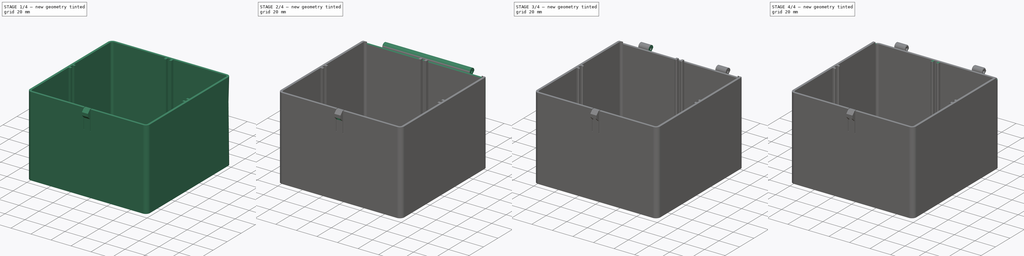
[diagram: build sequence overview — one tinted view per stage of 4, left to right]
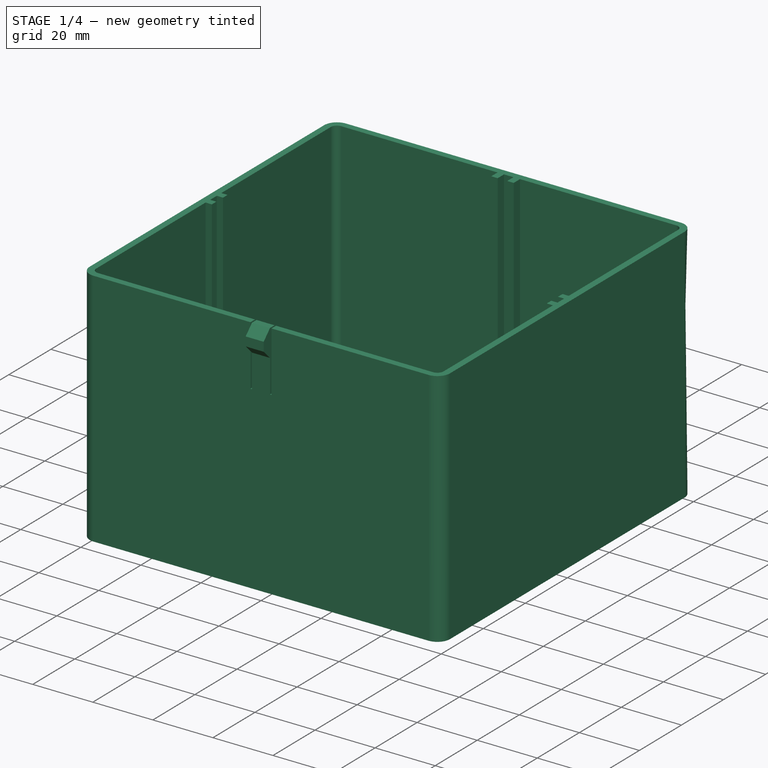
[diagram: stage 1 of 4 — iso view after this stage's code; geometry added in this stage tinted green]
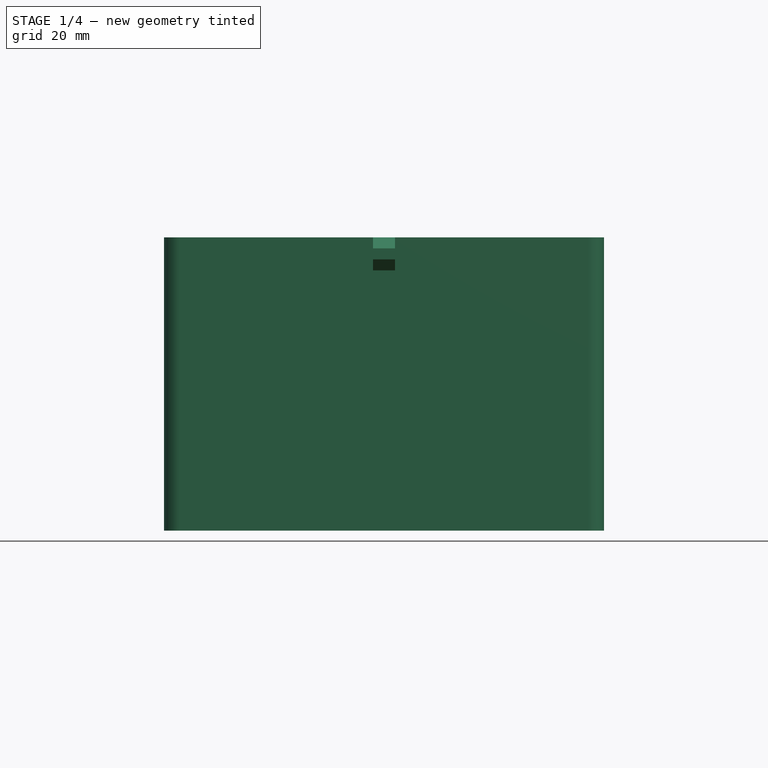
[diagram: stage 1 of 4 — front view after this stage's code; geometry added in this stage tinted green]
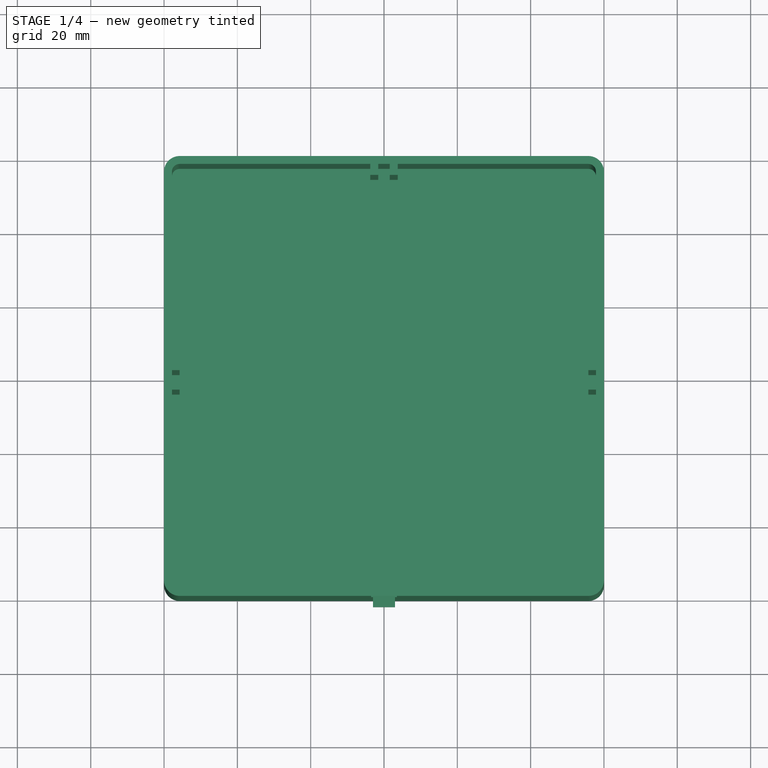
[diagram: stage 1 of 4 — top view after this stage's code; geometry added in this stage tinted green]
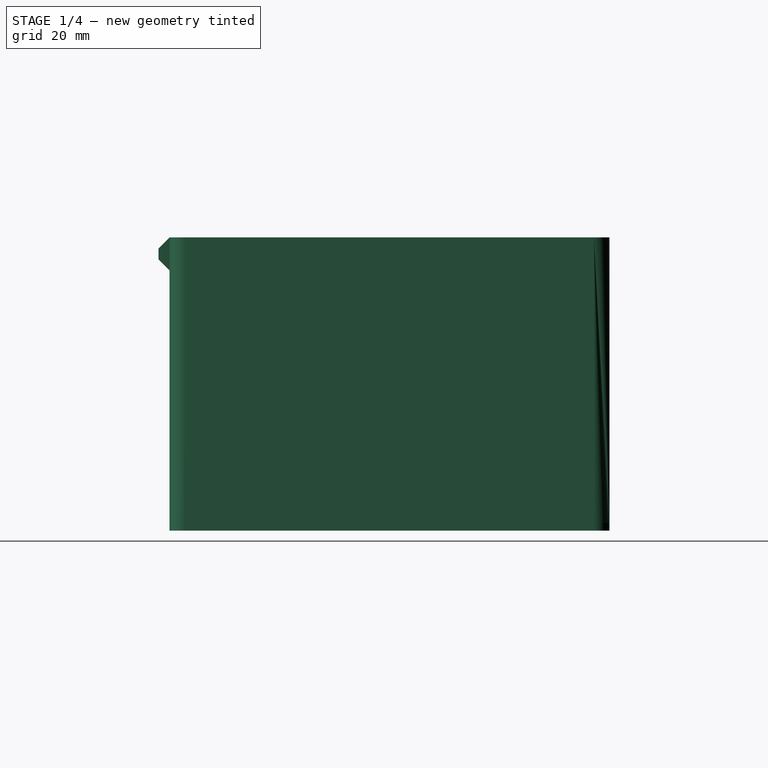
[diagram: stage 1 of 4 — right view after this stage's code; geometry added in this stage tinted green]
FCSTD DOCUMENT  (FreeCAD 0.20R24789 (Git))
Label: BoxBase
License: All rights reserved
LicenseURL: http://en.wikipedia.org/wiki/All_rights_reserved
objects: Sketcher::SketchObject×12, PartDesign::Pad×5, PartDesign::Pocket×5, PartDesign::Fillet×4, Spreadsheet::Sheet×1, PartDesign::Body×1
note: 41 computed .brp shape members not serialized (recipe doc carries the construction recipe); baked Part::Feature solids carry a one-line shape summary decoded from their .brp

FEATURE [Spreadsheet::Sheet] Spreadsheet  label="Param"
  cells = A2=HingeTolerance ; B2(HingeTolerance)==0.5mm; A3=LIne Width; B3(LineWidth)==0.72mm; A4=WallWidth ; B4(WallWidth)==3 * LineWidth; A5=Width; B5(Width)==120mm; A6=Length; B6(Length)==120mm; A7=Height; B7(Height)==80mm; A8=HingeWidth; B8(HingeWidth)==6mm; A9=HingeLength; B9(HingeLength)==10mm; A10=LidHingeLength ; B10(LidHingeLength)==7mm; A11=HIngeOffset; B11(HingeOffset)==10mm + LidHingeLength + HingeTolerance
FEATURE [Sketcher::SketchObject] Sketch  label="masterXY"
  FullyConstrained = true
  MapMode = 5
  Support = -> [XY_Plane]
  expr: Constraints[10] = <<Param>>.Width
  expr: Constraints[110] = <<Param>>.HingeTolerance
  expr: Constraints[88] = <<Param>>.HingeWidth
  expr: Constraints[89] = <<Param>>.HingeOffset
  expr: Constraints[109] = <<Param>>.HingeTolerance
  expr: Constraints[140] = <<Param>>.WallWidth
  expr: Constraints[21] = <<Param>>.WallWidth
  expr: Constraints[142] = <<Param>>.WallWidth + <<Param>>.HingeTolerance * 2
  expr: Constraints[20] = <<Param>>.WallWidth
  expr: Constraints[87] = <<Param>>.HingeLength
  expr: Constraints[9] = <<Param>>.Length
  expr: Constraints[141] = <<Param>>.WallWidth
  expr: Constraints[179] = <<Param>>.WallWidth
  expr: Constraints[180] = <<Param>>.WallWidth + <<Param>>.HingeTolerance * 2
  sketch-geometry (57):
    g0: LineSegment StartX=-60 StartY=60 StartZ=0 EndX=60 EndY=60 EndZ=0
    g1: LineSegment StartX=60 StartY=60 StartZ=0 EndX=60 EndY=-60 EndZ=0
    g2: LineSegment StartX=60 StartY=-60 StartZ=0 EndX=-60 EndY=-60 EndZ=0
    g3: LineSegment StartX=-60 StartY=-60 StartZ=0 EndX=-60 EndY=60 EndZ=0
    g4: LineSegment StartX=-57.84 StartY=57.84 StartZ=0 EndX=57.84 EndY=57.84 EndZ=0
    g5: LineSegment StartX=57.84 StartY=57.84 StartZ=0 EndX=57.84 EndY=-57.84 EndZ=0
    g6: LineSegment StartX=57.84 StartY=-57.84 StartZ=0 EndX=-57.84 EndY=-57.84 EndZ=0
    g7: LineSegment StartX=-57.84 StartY=-57.84 StartZ=0 EndX=-57.84 EndY=57.84 EndZ=0
    g8: LineSegment StartX=-55.7574 StartY=55.7574 StartZ=0 EndX=55.7574 EndY=55.7574 EndZ=0
    g9: LineSegment StartX=55.7574 StartY=55.7574 StartZ=0 EndX=55.7574 EndY=-55.7574 EndZ=0
    g10: LineSegment StartX=55.7574 StartY=-55.7574 StartZ=0 EndX=-55.7574 EndY=-55.7574 EndZ=0
    g11: LineSegment StartX=-55.7574 StartY=-55.7574 StartZ=0 EndX=-55.7574 EndY=55.7574 EndZ=0
    g12: LineSegment StartX=-60 StartY=60 StartZ=0 EndX=60 EndY=-60 EndZ=0
    g13: ArcOfCircle CenterX=-55.7574 CenterY=55.7574 CenterZ=0 NormalX=0 NormalY=0 NormalZ=1 AngleXU=0 Radius=4.24264 StartAngle=1.5708 EndAngle=3.14159
    g14: ArcOfCircle CenterX=-55.7574 CenterY=55.7574 CenterZ=0 NormalX=0 NormalY=0 NormalZ=1 AngleXU=0 Radius=2.08264 StartAngle=1.5708 EndAngle=3.14159
    g15: ArcOfCircle CenterX=-55.7574 CenterY=-55.7574 CenterZ=0 NormalX=0 NormalY=0 NormalZ=1 AngleXU=0 Radius=2.08264 StartAngle=3.14159 EndAngle=4.71239
    g16: ArcOfCircle CenterX=-55.7574 CenterY=-55.7574 CenterZ=0 NormalX=0 NormalY=0 NormalZ=1 AngleXU=0 Radius=4.24264 StartAngle=3.14159 EndAngle=4.71239
    g17: ArcOfCircle CenterX=55.7574 CenterY=-55.7574 CenterZ=0 NormalX=0 NormalY=0 NormalZ=1 AngleXU=0 Radius=2.08264 StartAngle=4.71239 EndAngle=6.28319
    g18: ArcOfCircle CenterX=55.7574 CenterY=-55.7574 CenterZ=0 NormalX=0 NormalY=0 NormalZ=1 AngleXU=0 Radius=4.24264 StartAngle=4.71239 EndAngle=6.28319
    g19: ArcOfCircle CenterX=55.7574 CenterY=55.7574 CenterZ=0 NormalX=0 NormalY=0 NormalZ=1 AngleXU=0 Radius=2.08264 StartAngle=5.91478e-08 EndAngle=1.5708
    g20: ArcOfCircle CenterX=55.7574 CenterY=55.7574 CenterZ=0 NormalX=0 NormalY=0 NormalZ=1 AngleXU=0 Radius=4.24264 StartAngle=6.28319 EndAngle=7.85398
    g21: LineSegment StartX=-42.5 StartY=60 StartZ=0 EndX=-32.5 EndY=60 EndZ=0
    g22: LineSegment StartX=-32.5 StartY=60 StartZ=0 EndX=-32.5 EndY=66 EndZ=0
    g23: LineSegment StartX=-32.5 StartY=66 StartZ=0 EndX=-42.5 EndY=66 EndZ=0
    g24: LineSegment StartX=-42.5 StartY=66 StartZ=0 EndX=-42.5 EndY=60 EndZ=0
    g25: LineSegment StartX=42.5 StartY=60 StartZ=0 EndX=32.5 EndY=60 EndZ=0
    g26: LineSegment StartX=32.5 StartY=60 StartZ=0 EndX=32.5 EndY=66 EndZ=0
    g27: LineSegment StartX=32.5 StartY=66 StartZ=0 EndX=42.5 EndY=66 EndZ=0
    g28: LineSegment StartX=42.5 StartY=66 StartZ=0 EndX=42.5 EndY=60 EndZ=0
    g29: LineSegment StartX=-3 StartY=-57.84 StartZ=0 EndX=3 EndY=-57.84 EndZ=0
    g30: LineSegment StartX=3 StartY=-57.84 StartZ=0 EndX=3 EndY=-62 EndZ=0
    g31: LineSegment StartX=3 StartY=-62 StartZ=0 EndX=-3 EndY=-62 EndZ=0
    g32: LineSegment StartX=-3 StartY=-62 StartZ=0 EndX=-3 EndY=-57.84 EndZ=0
    g33: GeomPoint X=3 Y=-60 Z=0
    g34: LineSegment StartX=3.5 StartY=-57.84 StartZ=0 EndX=3.5 EndY=-60 EndZ=0
    g35: LineSegment StartX=-3.5 StartY=-57.84 StartZ=0 EndX=-3.5 EndY=-60 EndZ=0
    g36: LineSegment StartX=-42.5 StartY=64 StartZ=0 EndX=-32.5 EndY=64 EndZ=0
    g37: LineSegment StartX=-42.5 StartY=62 StartZ=0 EndX=-32.5 EndY=62 EndZ=0
    g38: LineSegment StartX=-37.5 StartY=64 StartZ=0 EndX=-37.5 EndY=66 EndZ=0
    g39: LineSegment StartX=-37.5 StartY=64 StartZ=0 EndX=-37.5 EndY=62 EndZ=0
    g40: LineSegment StartX=-37.5 StartY=62 StartZ=0 EndX=-37.5 EndY=60 EndZ=0
    g41: LineSegment StartX=32.5 StartY=64 StartZ=0 EndX=42.5 EndY=64 EndZ=0
    g42: LineSegment StartX=32.5 StartY=62 StartZ=0 EndX=42.5 EndY=62 EndZ=0
    g43: LineSegment StartX=-1.58 StartY=57.84 StartZ=0 EndX=-1.58 EndY=-57.84 EndZ=0
    g44: LineSegment StartX=-3.74 StartY=57.84 StartZ=0 EndX=-3.74 EndY=-57.84 EndZ=0
    g45: LineSegment StartX=1.58 StartY=57.84 StartZ=0 EndX=1.58 EndY=-57.84 EndZ=0
    g46: LineSegment StartX=3.74 StartY=57.84 StartZ=0 EndX=3.74 EndY=-57.84 EndZ=0
    g47: LineSegment StartX=-3.74 StartY=54.84 StartZ=0 EndX=3.74 EndY=54.84 EndZ=0
    g48: LineSegment StartX=-3.74 StartY=-54.84 StartZ=0 EndX=3.74 EndY=-54.84 EndZ=0
    g49: LineSegment StartX=-57.84 StartY=1.58 StartZ=0 EndX=57.84 EndY=1.58 EndZ=0
    g50: LineSegment StartX=57.84 StartY=1.58 StartZ=0 EndX=57.84 EndY=3.74 EndZ=0
    g51: LineSegment StartX=57.84 StartY=3.74 StartZ=0 EndX=-57.84 EndY=3.74 EndZ=0
    g52: LineSegment StartX=-57.84 StartY=3.74 StartZ=0 EndX=-57.84 EndY=1.58 EndZ=0
    g53: LineSegment StartX=57.84 StartY=-3.74 StartZ=0 EndX=-57.84 EndY=-3.74 EndZ=0
    g54: LineSegment StartX=-57.84 StartY=-3.74 StartZ=0 EndX=-57.84 EndY=-1.58 EndZ=0
    g55: LineSegment StartX=-57.84 StartY=-1.58 StartZ=0 EndX=57.84 EndY=-1.58 EndZ=0
    g56: LineSegment StartX=57.84 StartY=-1.58 StartZ=0 EndX=57.84 EndY=-3.74 EndZ=0
  constraints (181):
    c: Coincident(g0,g1)
    c: Coincident(g1,g2)
    c: Coincident(g2,g3)
    c: Coincident(g3,g0)
    c: Horizontal(g0)
    c: Horizontal(g2)
    c: Vertical(g1)
    c: Vertical(g3)
    c: Symmetric(g0,g1,g-1)
    c: DistanceY(g1,g1) = 120
    c: DistanceX(g0,g0) = 120
    c: Coincident(g4,g5)
    c: Coincident(g5,g6)
    c: Coincident(g6,g7)
    c: Coincident(g7,g4)
    c: Horizontal(g4)
    c: Horizontal(g6)
    c: Vertical(g5)
    c: Vertical(g7)
    c: Symmetric(g5,g4,g-1)
    c: DistanceX(g4,g0) = 2.16
    c: DistanceY(g4,g0) = 2.16
    c: Coincident(g8,g9)
    c: Coincident(g9,g10)
    c: Coincident(g10,g11)
    c: Coincident(g11,g8)
    c: Horizontal(g8)
    c: Horizontal(g10)
    c: Vertical(g9)
    c: Vertical(g11)
    c: Symmetric(g8,g9,g-1)
    c: Coincident(g12,g0)
    c: Coincident(g12,g1)
    c: PointOnObject(g9,g12)
    c: Distance(g0,g8) = 6
    c: Coincident(g13,g8)
    c: PointOnObject(g13,g3)
    c: PointOnObject(g13,g0)
    c: Tangent(g13,g0,g13) = 1.5708
    c: Coincident(g14,g8)
    c: PointOnObject(g14,g7)
    c: PointOnObject(g14,g4)
    c: Tangent(g14,g4)
    c: Coincident(g15,g10)
    c: PointOnObject(g15,g7)
    c: PointOnObject(g15,g6)
    c: Coincident(g16,g10)
    c: PointOnObject(g16,g3)
    c: PointOnObject(g16,g2)
    c: Tangent(g15,g7)
    c: Tangent(g16,g3)
    c: Coincident(g17,g9)
    c: PointOnObject(g17,g5)
    c: PointOnObject(g17,g6)
    c: Coincident(g18,g9)
    c: PointOnObject(g18,g1)
    c: PointOnObject(g18,g2)
    c: Tangent(g1,g18)
    c: Tangent(g17,g5)
    c: Coincident(g19,g8)
    c: PointOnObject(g19,g4)
    c: PointOnObject(g19,g5)
    c: Coincident(g20,g8)
    c: PointOnObject(g20,g0)
    c: PointOnObject(g20,g1)
    c: Tangent(g4,g19)
    c: Tangent(g0,g20)
    c: Coincident(g21,g22)
    c: Coincident(g22,g23)
    c: Coincident(g23,g24)
    c: Coincident(g24,g21)
    c: Horizontal(g21)
    c: Horizontal(g23)
    c: Vertical(g22)
    c: Vertical(g24)
    c: PointOnObject(g21,g0)
    c: Coincident(g25,g26)
    c: Coincident(g26,g27)
    c: Coincident(g27,g28)
    c: Coincident(g28,g25)
    c: Horizontal(g25)
    c: Horizontal(g27)
    c: Vertical(g26)
    c: Vertical(g28)
    c: Symmetric(g25,g21,g-2)
    c: Equal(g23,g27)
    c: Horizontal(g22,g26)
    c: DistanceX(g27,g27) = 10
    c: DistanceY(g28,g28) = 6
    c: DistanceX(g25,g0) = 17.5
    c: Coincident(g29,g30)
    c: Coincident(g30,g31)
    c: Coincident(g31,g32)
    c: Coincident(g32,g29)
    c: Horizontal(g29)
    c: Vertical(g30)
    c: Vertical(g32)
    c: PointOnObject(g29,g6)
    c: Symmetric(g30,g31,g-2)
    c: PointOnObject(g33,g30)
    c: PointOnObject(g33,g2)
    c: DistanceY(g30,g33) = 2
    c: DistanceX(g31,g31) = 6
    c: PointOnObject(g34,g6)
    c: PointOnObject(g34,g2)
    c: Vertical(g34)
    c: PointOnObject(g35,g6)
    c: PointOnObject(g35,g2)
    c: Vertical(g35)
    c: DistanceX(g35,g29) = 0.5
    c: DistanceX(g29,g34) = 0.5
    c: PointOnObject(g36,g24)
    c: PointOnObject(g36,g22)
    c: Horizontal(g36)
    c: PointOnObject(g37,g24)
    c: PointOnObject(g37,g22)
    c: Horizontal(g37)
    c: PointOnObject(g38,g36)
    c: PointOnObject(g38,g23)
    c: PointOnObject(g39,g37)
    c: Vertical(g39)
    c: PointOnObject(g40,g0)
    c: Vertical(g40)
    c: Coincident(g40,g39)
    c: Coincident(g39,g38)
    c: Symmetric(g22,g23,g38)
    c: Equal(g38,g39)
    c: Equal(g40,g39)
    c: PointOnObject(g41,g26)
    c: PointOnObject(g41,g28)
    c: PointOnObject(g42,g26)
    c: PointOnObject(g42,g28)
    c: Horizontal(g42)
    c: Horizontal(g41)
    c: Horizontal(g41,g36)
    c: Horizontal(g37,g42)
    c: Vertical(g43)
    c: Vertical(g44)
    c: Vertical(g45)
    c: Vertical(g46)
    c: DistanceX(g44,g43) = 2.16
    c: DistanceX(g45,g46) = 2.16
    c: DistanceX(g43,g45) = 3.16
    c: Symmetric(g45,g43,g-2)
    c: PointOnObject(g47,g44)
    c: PointOnObject(g47,g46)
    c: Horizontal(g47)
    c: PointOnObject(g48,g44)
    c: PointOnObject(g48,g46)
    c: Horizontal(g48)
    c: DistanceY(g46,g48) = 3
    c: PointOnObject(g44,g4)
    c: PointOnObject(g43,g4)
    c: PointOnObject(g46,g4)
    c: PointOnObject(g44,g6)
    c: PointOnObject(g43,g6)
    c: PointOnObject(g45,g6)
    c: PointOnObject(g46,g6)
    c: DistanceY(g47,g46) = 3
    c: Coincident(g49,g50)
    c: Coincident(g50,g51)
    c: Coincident(g51,g52)
    c: Coincident(g52,g49)
    c: Horizontal(g49)
    c: Horizontal(g51)
    c: Vertical(g50)
    c: Vertical(g52)
    c: PointOnObject(g49,g7)
    c: PointOnObject(g50,g5)
    c: Coincident(g53,g54)
    c: Coincident(g54,g55)
    c: Coincident(g55,g56)
    c: Coincident(g56,g53)
    c: Horizontal(g53)
    c: Horizontal(g55)
    c: Vertical(g54)
    c: PointOnObject(g54,g7)
    c: Symmetric(g50,g53,g-1)
    c: Symmetric(g55,g49,g-1)
    c: DistanceY(g49,g50) = 2.16
    c: DistanceY(g55,g49) = 3.16
FEATURE [Sketcher::SketchObject] Sketch001  label="MasterZY"
  ExternalGeometry = -> [Sketch]
  FullyConstrained = true
  MapMode = 5
  Placement = pos=(0,0,0) rot=(0.57735,0.57735,0.57735;2.0944rad)
  Support = -> [YZ_Plane]
  expr: Constraints[8] = <<Param>>.Height
  expr: Constraints[27] = <<Param>>.HingeWidth + <<Param>>.WallWidth + <<Param>>.HingeTolerance
  expr: Constraints[26] = <<Param>>.HingeWidth / 6
  expr: Constraints[31] = <<Param>>.WallWidth
  expr: Constraints[28] = <<Param>>.WallWidth
  expr: Constraints[34] = <<Param>>.WallWidth
  expr: Constraints[47] = <<Param>>.WallWidth
  sketch-geometry (16):
    g0: LineSegment StartX=-60 StartY=-3.33e-14 StartZ=0 EndX=60 EndY=0 EndZ=0
    g1: LineSegment StartX=60 StartY=0 StartZ=0 EndX=60 EndY=80 EndZ=0
    g2: LineSegment StartX=60 StartY=80 StartZ=0 EndX=-60 EndY=80 EndZ=0
    g3: LineSegment StartX=-60 StartY=80 StartZ=0 EndX=-60 EndY=-2.84e-14 EndZ=0
    g4: LineSegment StartX=-57.84 StartY=80 StartZ=0 EndX=-57.84 EndY=-2.84e-14 EndZ=0
    g5: LineSegment StartX=57.84 StartY=80 StartZ=0 EndX=57.84 EndY=0 EndZ=0
    g6: LineSegment StartX=57.84 StartY=77.84 StartZ=0 EndX=66.5 EndY=77.84 EndZ=0
    g7: LineSegment StartX=66.5 StartY=77.84 StartZ=0 EndX=60 EndY=71.34 EndZ=0
    g8: ArcOfCircle CenterX=63.25 CenterY=77.84 CenterZ=0 NormalX=0 NormalY=0 NormalZ=1 AngleXU=0 Radius=3.25 StartAngle=-1.15e-14 EndAngle=3.14159
    g9: Circle CenterX=63.25 CenterY=77.84 CenterZ=0 NormalX=0 NormalY=0 NormalZ=1 AngleXU=0 Radius=1
    g10: LineSegment StartX=62.25 StartY=77.84 StartZ=0 EndX=64.25 EndY=77.84 EndZ=0
    g11: LineSegment StartX=-60 StartY=80 StartZ=0 EndX=-63 EndY=77 EndZ=0
    g12: LineSegment StartX=-60 StartY=74 StartZ=0 EndX=-63 EndY=74 EndZ=0
    g13: LineSegment StartX=-63 StartY=77 StartZ=0 EndX=-63 EndY=74 EndZ=0
    g14: LineSegment StartX=-60 StartY=2.16 StartZ=0 EndX=60 EndY=2.16 EndZ=0
    g15: LineSegment StartX=-63 StartY=74 StartZ=0 EndX=-60 EndY=71 EndZ=0
  constraints (51):
    c: Coincident(g0,g1)
    c: Coincident(g1,g2)
    c: Coincident(g2,g3)
    c: Coincident(g3,g0)
    c: Horizontal(g2)
    c: Vertical(g1)
    c: Vertical(g3)
    c: Coincident(g0,g-3)
    c: DistanceY(g3,g3) = 80
    c: PointOnObject(g4,g2)
    c: PointOnObject(g4,g0)
    c: Vertical(g4)
    c: PointOnObject(g5,g2)
    c: PointOnObject(g5,g0)
    c: Vertical(g5)
    c: PointOnObject(g6,g5)
    c: Horizontal(g6)
    c: PointOnObject(g8,g6)
    c: PointOnObject(g8,g1)
    c: Coincident(g8,g6)
    c: Coincident(g7,g6)
    c: Coincident(g9,g8)
    c: PointOnObject(g10,g9)
    c: PointOnObject(g10,g9)
    c: PointOnObject(g10,g6)
    c: PointOnObject(g10,g6)
    c: Radius(g9) = 1
    c: DistanceX(g6,g6) = 8.66
    c: DistanceX(g5,g1) = 2.16
    c: Angle(g1,g7) = 2.35619
    c: PointOnObject(g7,g1)
    c: DistanceY(g6,g1) = 2.16
    c: PointOnObject(g8,g6)
    c: Coincident(g0,g-3)
    c: DistanceX(g2,g4) = 2.16
    c: PointOnObject(g12,g3)
    c: Horizontal(g12)
    c: Coincident(g13,g11)
    c: Coincident(g13,g12)
    c: Vertical(g13)
    c: Angle(g11,g3) = 0.785398
    c: DistanceX(g12,g12) = 3
    c: DistanceY(g12,g11) = 6
    c: Coincident(g11,g2)
    c: PointOnObject(g14,g3)
    c: PointOnObject(g14,g1)
    c: Horizontal(g14)
    c: DistanceY(g0,g14) = 2.16
    c: PointOnObject(g15,g3)
    c: Angle(g15,g3) = 2.35619
    c: Coincident(g15,g12)
FEATURE [Sketcher::SketchObject] Sketch002
  ExternalGeometry = -> [Sketch]
  FullyConstrained = true
  MapMode = 5
  Support = -> [XY_Plane]
  sketch-geometry (8):
    g0: ArcOfCircle CenterX=-55.7574 CenterY=55.7574 CenterZ=0 NormalX=0 NormalY=0 NormalZ=1 AngleXU=0 Radius=4.24264 StartAngle=1.57085 EndAngle=3.14159
    g1: ArcOfCircle CenterX=-55.7574 CenterY=-55.7574 CenterZ=0 NormalX=0 NormalY=0 NormalZ=1 AngleXU=0 Radius=4.24264 StartAngle=3.14159 EndAngle=4.71239
    g2: ArcOfCircle CenterX=55.7574 CenterY=-55.7574 CenterZ=0 NormalX=0 NormalY=0 NormalZ=1 AngleXU=0 Radius=4.24264 StartAngle=4.71239 EndAngle=6.28319
    g3: ArcOfCircle CenterX=55.7574 CenterY=55.7574 CenterZ=0 NormalX=0 NormalY=0 NormalZ=1 AngleXU=0 Radius=4.24264 StartAngle=8.48127e-08 EndAngle=1.5708
    g4: LineSegment StartX=-60 StartY=55.7574 StartZ=0 EndX=-60 EndY=-55.7574 EndZ=0
    g5: LineSegment StartX=60 StartY=55.7574 StartZ=0 EndX=60 EndY=-55.7574 EndZ=0
    g6: LineSegment StartX=55.7574 StartY=-60 StartZ=0 EndX=-55.7574 EndY=-60 EndZ=0
    g7: LineSegment StartX=-55.7576 StartY=60 StartZ=0 EndX=55.7574 EndY=60 EndZ=0
  constraints (19):
    c: Coincident(g0,g-6)
    c: Coincident(g1,g-12)
    c: Coincident(g1,g-12)
    c: Coincident(g1,g-12)
    c: Coincident(g2,g-14)
    c: Coincident(g2,g-13)
    c: Coincident(g2,g-13)
    c: Coincident(g3,g-18)
    c: Coincident(g3,g-17)
    c: Coincident(g3,g-17)
    c: Coincident(g4,g0)
    c: Coincident(g4,g1)
    c: Coincident(g5,g3)
    c: Coincident(g5,g2)
    c: Coincident(g6,g2)
    c: Coincident(g6,g1)
    c: Coincident(g7,g0)
    c: Coincident(g7,g3)
    c: Coincident(g0,g-6)
FEATURE [PartDesign::Pad] Pad
  Direction = (0,0,1)
  Length = 2.16
  Length2 = 100
  Profile = -> Sketch002
  Type = 0
  expr: Length = <<Param>>.WallWidth
FEATURE [Sketcher::SketchObject] Sketch003
  ExternalGeometry = -> [Sketch]
  FullyConstrained = true
  MapMode = 5
  Placement = pos=(0,0,2.16) rot=(0,0,1;0rad)
  Support = -> [Pad]
  sketch-geometry (48):
    g0: ArcOfCircle CenterX=-55.7574 CenterY=55.7574 CenterZ=0 NormalX=0 NormalY=0 NormalZ=1 AngleXU=0 Radius=2.08264 StartAngle=1.5708 EndAngle=3.14159
    g1: ArcOfCircle CenterX=-55.7574 CenterY=55.7574 CenterZ=0 NormalX=0 NormalY=0 NormalZ=1 AngleXU=0 Radius=4.24264 StartAngle=1.5708 EndAngle=3.14159
    g2: ArcOfCircle CenterX=55.7574 CenterY=55.7574 CenterZ=0 NormalX=0 NormalY=0 NormalZ=1 AngleXU=0 Radius=2.08264 StartAngle=5.91478e-08 EndAngle=1.5708
    g3: ArcOfCircle CenterX=55.7574 CenterY=55.7574 CenterZ=0 NormalX=0 NormalY=0 NormalZ=1 AngleXU=0 Radius=4.24264 StartAngle=6.28319 EndAngle=7.85398
    g4: ArcOfCircle CenterX=55.7574 CenterY=-55.7574 CenterZ=0 NormalX=0 NormalY=0 NormalZ=1 AngleXU=0 Radius=2.08264 StartAngle=4.71239 EndAngle=6.28319
    g5: ArcOfCircle CenterX=55.7574 CenterY=-55.7574 CenterZ=0 NormalX=0 NormalY=0 NormalZ=1 AngleXU=0 Radius=4.24264 StartAngle=4.71239 EndAngle=6.28319
    g6: ArcOfCircle CenterX=-55.7574 CenterY=-55.7574 CenterZ=0 NormalX=0 NormalY=0 NormalZ=1 AngleXU=0 Radius=2.08264 StartAngle=3.14159 EndAngle=4.71239
    g7: ArcOfCircle CenterX=-55.7574 CenterY=-55.7574 CenterZ=0 NormalX=0 NormalY=0 NormalZ=1 AngleXU=0 Radius=4.24264 StartAngle=3.14159 EndAngle=4.71239
    g8: LineSegment StartX=-55.7574 StartY=-60 StartZ=0 EndX=55.7574 EndY=-60 EndZ=0
    g9: LineSegment StartX=55.7574 StartY=-57.84 StartZ=0 EndX=3.74 EndY=-57.84 EndZ=0
    g10: LineSegment StartX=-3.74 StartY=-57.84 StartZ=0 EndX=-55.7574 EndY=-57.84 EndZ=0
    g11: LineSegment StartX=-60 StartY=55.7574 StartZ=0 EndX=-60 EndY=-55.7574 EndZ=0
    g12: LineSegment StartX=60 StartY=-55.7574 StartZ=0 EndX=60 EndY=55.7574 EndZ=0
    g13: LineSegment StartX=-55.7574 StartY=60 StartZ=0 EndX=55.7574 EndY=60 EndZ=0
    g14: LineSegment StartX=3.74 StartY=57.84 StartZ=0 EndX=55.7574 EndY=57.84 EndZ=0
    g15: LineSegment StartX=-55.7574 StartY=57.84 StartZ=0 EndX=-3.74 EndY=57.84 EndZ=0
    g16: LineSegment StartX=-3.74 StartY=57.84 StartZ=0 EndX=-3.74 EndY=54.84 EndZ=0
    g17: LineSegment StartX=3.74 StartY=54.84 StartZ=0 EndX=3.74 EndY=57.84 EndZ=0
    g18: LineSegment StartX=-1.58 StartY=57.84 StartZ=0 EndX=1.58 EndY=57.84 EndZ=0
    g19: LineSegment StartX=1.58 StartY=57.84 StartZ=0 EndX=1.58 EndY=54.84 EndZ=0
    g20: LineSegment StartX=-1.58 StartY=57.84 StartZ=0 EndX=-1.58 EndY=54.84 EndZ=0
    g21: LineSegment StartX=-3.74 StartY=54.84 StartZ=0 EndX=-1.58 EndY=54.84 EndZ=0
    g22: LineSegment StartX=1.58 StartY=54.84 StartZ=0 EndX=3.74 EndY=54.84 EndZ=0
    g23: LineSegment StartX=1.58 StartY=-57.84 StartZ=0 EndX=-1.58 EndY=-57.84 EndZ=0
    g24: LineSegment StartX=-3.74 StartY=-54.84 StartZ=0 EndX=-3.74 EndY=-57.84 EndZ=0
    g25: LineSegment StartX=3.74 StartY=-54.84 StartZ=0 EndX=3.74 EndY=-57.84 EndZ=0
    g26: LineSegment StartX=1.58 StartY=-57.84 StartZ=0 EndX=1.58 EndY=-54.84 EndZ=0
    g27: LineSegment StartX=1.58 StartY=-54.84 StartZ=0 EndX=3.74 EndY=-54.84 EndZ=0
    g28: LineSegment StartX=-1.58 StartY=-57.84 StartZ=0 EndX=-1.58 EndY=-54.84 EndZ=0
    g29: LineSegment StartX=-1.58 StartY=-54.84 StartZ=0 EndX=-3.74 EndY=-54.84 EndZ=0
    g30: LineSegment StartX=-57.84 StartY=55.7574 StartZ=0 EndX=-57.84 EndY=3.74 EndZ=0
    g31: LineSegment StartX=-57.84 StartY=1.58 StartZ=0 EndX=-57.84 EndY=-1.58 EndZ=0
    g32: LineSegment StartX=-57.84 StartY=-3.74 StartZ=0 EndX=-57.84 EndY=-55.7574 EndZ=0
    g33: LineSegment StartX=57.84 StartY=-55.7574 StartZ=0 EndX=57.84 EndY=-3.74 EndZ=0
    g34: LineSegment StartX=57.84 StartY=3.74 StartZ=0 EndX=57.84 EndY=55.7574 EndZ=0
    g35: LineSegment StartX=57.84 StartY=-1.58 StartZ=0 EndX=57.84 EndY=1.58 EndZ=0
    g36: LineSegment StartX=57.84 StartY=3.74 StartZ=0 EndX=55.7574 EndY=3.74 EndZ=0
    g37: LineSegment StartX=57.84 StartY=1.58 StartZ=0 EndX=55.7574 EndY=1.58 EndZ=0
    g38: LineSegment StartX=55.7574 StartY=1.58 StartZ=0 EndX=55.7574 EndY=3.74 EndZ=0
    g39: LineSegment StartX=57.84 StartY=-1.58 StartZ=0 EndX=55.7574 EndY=-1.58 EndZ=0
    g40: LineSegment StartX=57.84 StartY=-3.74 StartZ=0 EndX=55.7574 EndY=-3.74 EndZ=0
    g41: LineSegment StartX=55.7574 StartY=-3.74 StartZ=0 EndX=55.7574 EndY=-1.58 EndZ=0
    g42: LineSegment StartX=-57.84 StartY=3.74 StartZ=0 EndX=-55.7574 EndY=3.74 EndZ=0
    g43: LineSegment StartX=-57.84 StartY=1.58 StartZ=0 EndX=-55.7574 EndY=1.58 EndZ=0
    g44: LineSegment StartX=-55.7574 StartY=1.58 StartZ=0 EndX=-55.7574 EndY=3.74 EndZ=0
    g45: LineSegment StartX=-57.84 StartY=-1.58 StartZ=0 EndX=-55.7574 EndY=-1.58 EndZ=0
    g46: LineSegment StartX=-57.84 StartY=-3.74 StartZ=0 EndX=-55.7574 EndY=-3.74 EndZ=0
    g47: LineSegment StartX=-55.7574 StartY=-3.74 StartZ=0 EndX=-55.7574 EndY=-1.58 EndZ=0
  constraints (116):
    c: Coincident(g0,g-8)
    c: Coincident(g0,g-8)
    c: Coincident(g0,g-8)
    c: Coincident(g1,g0)
    c: Coincident(g1,g-7)
    c: Coincident(g1,g-7)
    c: Coincident(g2,g-6)
    c: Coincident(g2,g-5)
    c: Coincident(g2,g-5)
    c: Coincident(g3,g2)
    c: Coincident(g3,g-6)
    c: Coincident(g3,g-6)
    c: Coincident(g4,g-12)
    c: PointOnObject(g4,g-19)
    c: Coincident(g4,g-12)
    c: Coincident(g5,g4)
    c: Coincident(g5,g-11)
    c: Coincident(g5,g-11)
    c: Coincident(g6,g-10)
    c: Coincident(g6,g-9)
    c: Coincident(g6,g-9)
    c: Coincident(g7,g6)
    c: Coincident(g7,g-10)
    c: Coincident(g7,g-10)
    c: Coincident(g8,g7)
    c: Coincident(g8,g5)
    c: Coincident(g9,g4)
    c: Coincident(g9,g-16)
    c: Coincident(g10,g-13)
    c: Coincident(g10,g6)
    c: Coincident(g11,g1)
    c: Coincident(g11,g7)
    c: Coincident(g12,g5)
    c: Coincident(g12,g3)
    c: Coincident(g13,g1)
    c: Coincident(g13,g3)
    c: Coincident(g14,g-16)
    c: Coincident(g14,g2)
    c: Coincident(g15,g0)
    c: Coincident(g15,g-13)
    c: Coincident(g16,g15)
    c: Coincident(g16,g-20)
    c: Coincident(g17,g-20)
    c: Coincident(g17,g14)
    c: Coincident(g18,g-14)
    c: Coincident(g18,g-15)
    c: Coincident(g19,g18)
    c: PointOnObject(g19,g-15)
    c: Coincident(g20,g18)
    c: PointOnObject(g20,g-14)
    c: Coincident(g21,g16)
    c: Coincident(g21,g20)
    c: Horizontal(g21)
    c: Coincident(g22,g19)
    c: Coincident(g22,g17)
    c: Horizontal(g22)
    c: Coincident(g23,g-15)
    c: Coincident(g23,g-14)
    c: Coincident(g24,g-17)
    c: Coincident(g24,g10)
    c: Coincident(g25,g-17)
    c: Coincident(g25,g9)
    c: Coincident(g26,g23)
    c: PointOnObject(g26,g-15)
    c: Coincident(g27,g25)
    c: Horizontal(g27)
    c: Coincident(g28,g23)
    c: PointOnObject(g28,g-14)
    c: Coincident(g29,g24)
    c: Horizontal(g29)
    c: Coincident(g26,g27)
    c: Coincident(g28,g29)
    c: Coincident(g30,g0)
    c: Coincident(g30,g-21)
    c: Coincident(g31,g-22)
    c: Coincident(g31,g-23)
    c: Coincident(g32,g-24)
    c: Coincident(g32,g6)
    c: Coincident(g33,g4)
    c: Coincident(g33,g-24)
    c: Coincident(g34,g-21)
    c: Coincident(g34,g2)
    c: Coincident(g35,g-23)
    c: Coincident(g35,g-22)
    c: Coincident(g36,g34)
    c: PointOnObject(g36,g-26)
    c: Horizontal(g36)
    c: Coincident(g37,g35)
    c: PointOnObject(g37,g-26)
    c: Horizontal(g37)
    c: Coincident(g38,g37)
    c: Coincident(g38,g36)
    c: Coincident(g39,g35)
    c: PointOnObject(g39,g-26)
    c: Horizontal(g39)
    c: Coincident(g40,g33)
    c: PointOnObject(g40,g-26)
    c: Horizontal(g40)
    c: Coincident(g41,g40)
    c: Coincident(g41,g39)
    c: Coincident(g42,g30)
    c: PointOnObject(g42,g-25)
    c: Horizontal(g42)
    c: Coincident(g43,g31)
    c: PointOnObject(g43,g-25)
    c: Horizontal(g43)
    c: Coincident(g44,g43)
    c: Coincident(g44,g42)
    c: Coincident(g45,g31)
    c: PointOnObject(g45,g-25)
    c: Horizontal(g45)
    c: Coincident(g46,g32)
    c: PointOnObject(g46,g-25)
    c: Horizontal(g46)
    c: Coincident(g47,g46)
    c: Coincident(g47,g45)
FEATURE [PartDesign::Pad] Pad001
  BaseFeature = -> Pad
  Direction = (0,0,1)
  Length = 77.84
  Length2 = 100
  Profile = -> Sketch003
  Type = 0
  expr: Length = <<Param>>.Height - <<Param>>.WallWidth
FEATURE [Sketcher::SketchObject] Sketch004
  ExternalGeometry = -> [Sketch]
  FullyConstrained = true
  MapMode = 5
  Placement = pos=(0,0,80) rot=(0,0,1;0rad)
  Support = -> [Pad001]
  sketch-geometry (12):
    g0: LineSegment StartX=-3.74 StartY=-54.84 StartZ=0 EndX=-3.74 EndY=-57.84 EndZ=0
    g1: LineSegment StartX=-3 StartY=-57.84 StartZ=0 EndX=3 EndY=-57.84 EndZ=0
    g2: LineSegment StartX=3 StartY=-57.84 StartZ=0 EndX=3 EndY=-60 EndZ=0
    g3: LineSegment StartX=3.5 StartY=-60 StartZ=0 EndX=3.5 EndY=-57.84 EndZ=0
    g4: LineSegment StartX=3.5 StartY=-57.84 StartZ=0 EndX=3.74 EndY=-57.84 EndZ=0
    g5: LineSegment StartX=3.74 StartY=-57.84 StartZ=0 EndX=3.74 EndY=-54.84 EndZ=0
    g6: LineSegment StartX=3.74 StartY=-54.84 StartZ=0 EndX=-3.74 EndY=-54.84 EndZ=0
    g7: LineSegment StartX=-3.5 StartY=-57.84 StartZ=0 EndX=-3.5 EndY=-60 EndZ=0
    g8: LineSegment StartX=-3.5 StartY=-60 StartZ=0 EndX=-3 EndY=-60 EndZ=0
    g9: LineSegment StartX=-3 StartY=-60 StartZ=0 EndX=-3 EndY=-57.84 EndZ=0
    g10: LineSegment StartX=-3.74 StartY=-57.84 StartZ=0 EndX=-3.5 EndY=-57.84 EndZ=0
    g11: LineSegment StartX=3 StartY=-60 StartZ=0 EndX=3.5 EndY=-60 EndZ=0
  constraints (26):
    c: Coincident(g0,g-12)
    c: Coincident(g0,g-5)
    c: Coincident(g1,g-10)
    c: Coincident(g2,g1)
    c: Coincident(g3,g-9)
    c: Coincident(g4,g3)
    c: Coincident(g4,g-4)
    c: Coincident(g5,g4)
    c: Coincident(g5,g-12)
    c: Coincident(g6,g5)
    c: Coincident(g6,g0)
    c: Coincident(g1,g-11)
    c: Coincident(g7,g-7)
    c: Coincident(g7,g-7)
    c: PointOnObject(g8,g-8)
    c: Coincident(g9,g1)
    c: Vertical(g9)
    c: Coincident(g10,g0)
    c: Coincident(g10,g7)
    c: Coincident(g11,g2)
    c: Coincident(g11,g3)
    c: Horizontal(g11)
    c: Coincident(g3,g-9)
    c: Vertical(g2)
    c: Coincident(g8,g9)
    c: Coincident(g8,g7)
FEATURE [PartDesign::Pocket] Pocket
  BaseFeature = -> Pad001
  Length = 20
  Length2 = 100
  Profile = -> Sketch004
  Type = 0
FEATURE [Sketcher::SketchObject] Sketch005
  ExternalGeometry = -> [Sketch001]
  FullyConstrained = true
  MapMode = 5
  Placement = pos=(0,0,0) rot=(0.57735,0.57735,0.57735;2.0944rad)
  Support = -> [YZ_Plane]
  sketch-geometry (4):
    g0: LineSegment StartX=-60 StartY=80 StartZ=0 EndX=-60 EndY=71 EndZ=0
    g1: LineSegment StartX=-60 StartY=71 StartZ=0 EndX=-63 EndY=74 EndZ=0
    g2: LineSegment StartX=-63 StartY=74 StartZ=0 EndX=-63 EndY=77 EndZ=0
    g3: LineSegment StartX=-63 StartY=77 StartZ=0 EndX=-60 EndY=80 EndZ=0
  constraints (8):
    c: Coincident(g0,g-7)
    c: Coincident(g0,g-5)
    c: Coincident(g1,g0)
    c: Coincident(g1,g-6)
    c: Coincident(g2,g1)
    c: Coincident(g2,g-4)
    c: Coincident(g3,g2)
    c: Coincident(g3,g0)
FEATURE [PartDesign::Pad] Pad002
  BaseFeature = -> Pocket
  Direction = (1,-2e-16,3e-16)
  Length = 6
  Length2 = 100
  Midplane = true
  Profile = -> Sketch005
  Type = 0
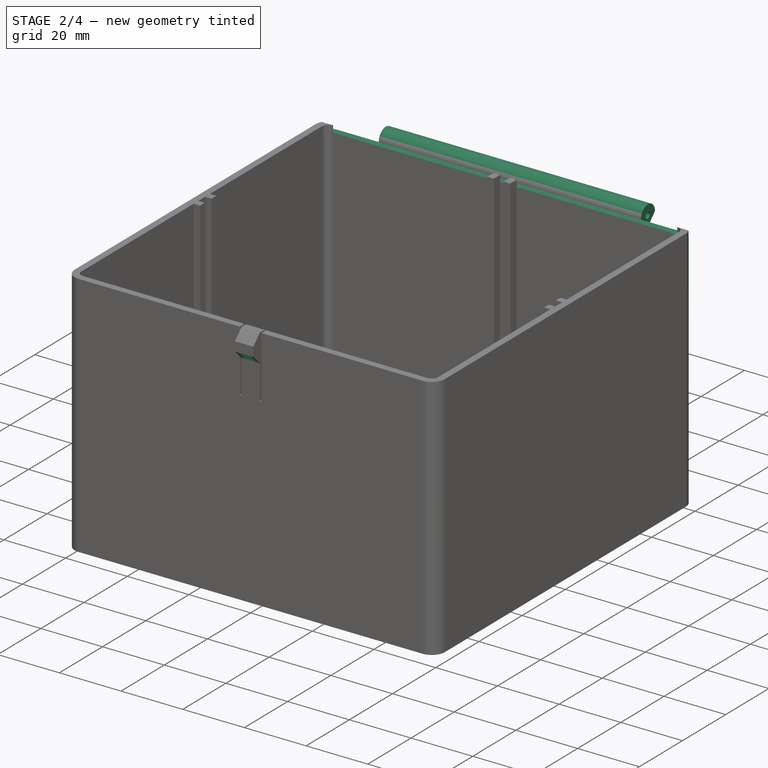
[diagram: stage 2 of 4 — iso view after this stage's code; geometry added in this stage tinted green]
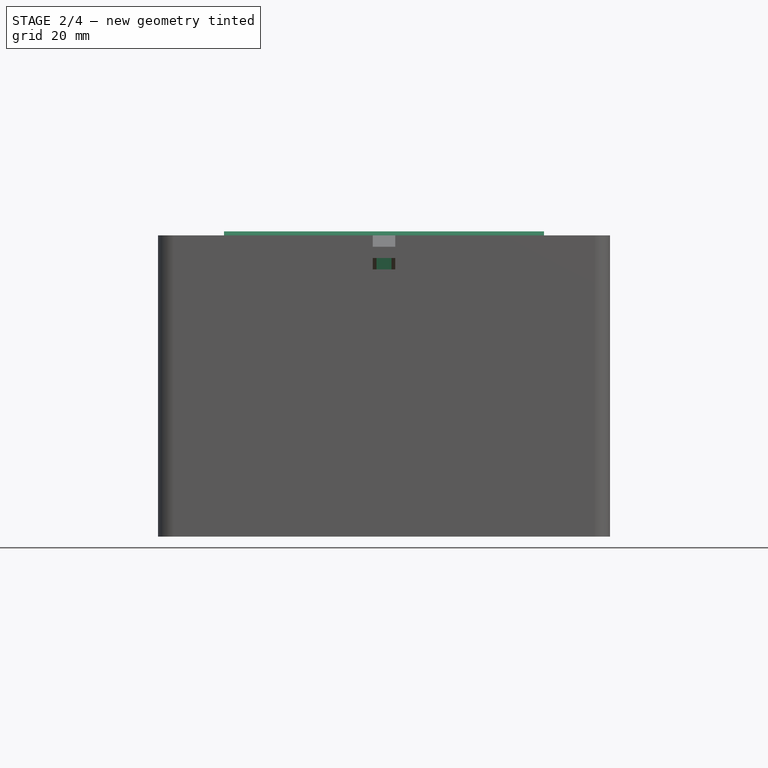
[diagram: stage 2 of 4 — front view after this stage's code; geometry added in this stage tinted green]
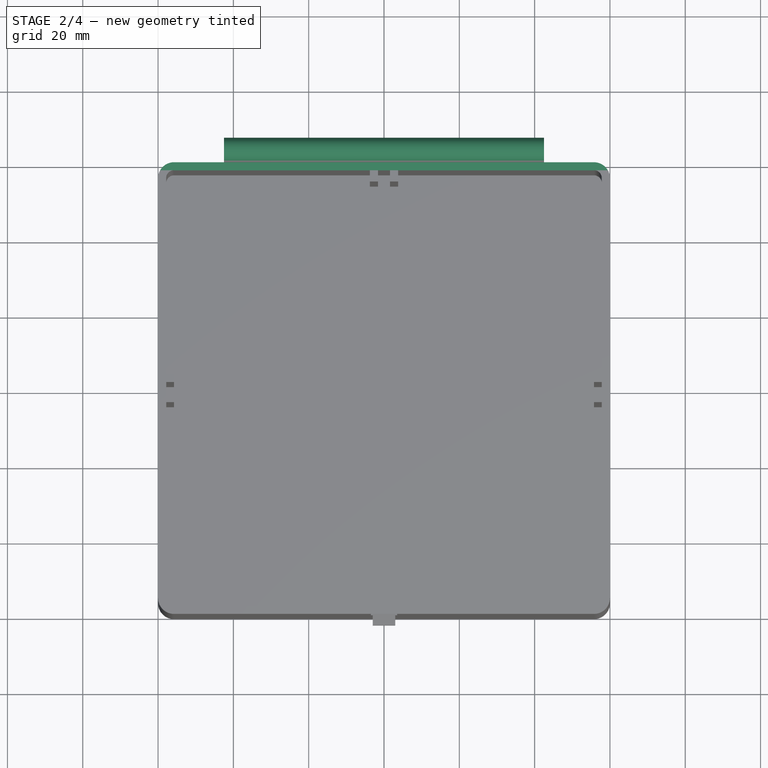
[diagram: stage 2 of 4 — top view after this stage's code; geometry added in this stage tinted green]
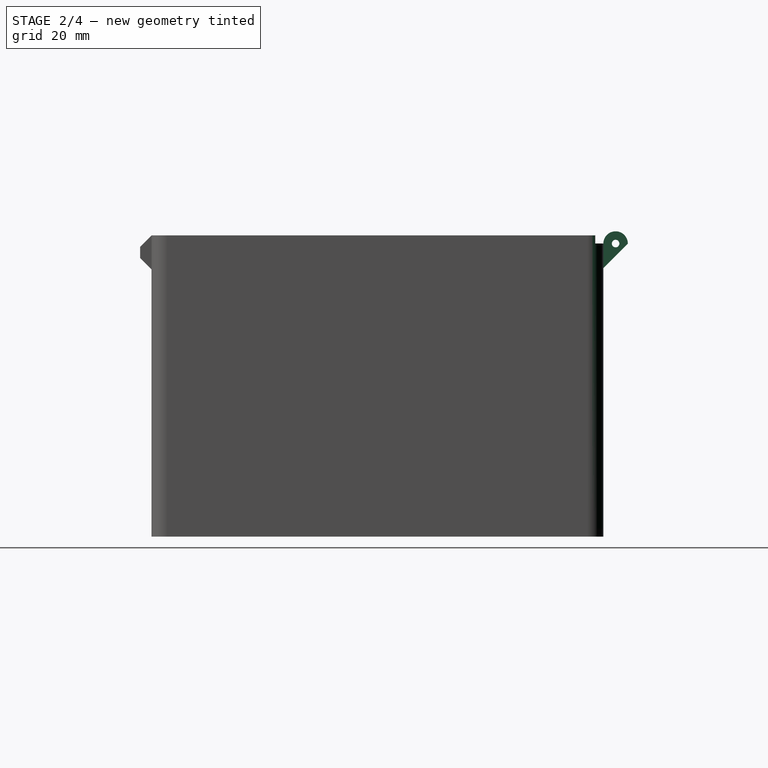
[diagram: stage 2 of 4 — right view after this stage's code; geometry added in this stage tinted green]
FEATURE [Sketcher::SketchObject] Sketch006
  ExternalGeometry = -> [Sketch001]
  FullyConstrained = true
  MapMode = 5
  Placement = pos=(0,0,0) rot=(0.57735,0.57735,0.57735;2.0944rad)
  Support = -> [YZ_Plane]
  sketch-geometry (3):
    g0: LineSegment StartX=-60 StartY=74 StartZ=0 EndX=-63 EndY=74 EndZ=0
    g1: LineSegment StartX=-63 StartY=74 StartZ=0 EndX=-60 EndY=71 EndZ=0
    g2: LineSegment StartX=-60 StartY=71 StartZ=0 EndX=-60 EndY=74 EndZ=0
  constraints (6):
    c: Coincident(g0,g-4)
    c: Coincident(g0,g-5)
    c: Coincident(g1,g0)
    c: Coincident(g1,g-5)
    c: Coincident(g2,g1)
    c: Coincident(g2,g0)
FEATURE [PartDesign::Pocket] Pocket001
  BaseFeature = -> Pad002
  Length = 4
  Length2 = 100
  Midplane = true
  Profile = -> Sketch006
  Type = 0
FEATURE [Sketcher::SketchObject] Sketch007
  ExternalGeometry = -> [Sketch001]
  FullyConstrained = true
  MapMode = 5
  Placement = pos=(0,0,0) rot=(0.57735,0.57735,0.57735;2.0944rad)
  Support = -> [YZ_Plane]
  sketch-geometry (4):
    g0: LineSegment StartX=60 StartY=77.84 StartZ=0 EndX=60 EndY=71.34 EndZ=0
    g1: LineSegment StartX=60 StartY=71.34 StartZ=0 EndX=66.5 EndY=77.84 EndZ=0
    g2: ArcOfCircle CenterX=63.25 CenterY=77.84 CenterZ=0 NormalX=0 NormalY=0 NormalZ=1 AngleXU=0 Radius=3.25 StartAngle=-1.24e-14 EndAngle=3.14159
    g3: Circle CenterX=63.25 CenterY=77.84 CenterZ=0 NormalX=0 NormalY=0 NormalZ=1 AngleXU=0 Radius=1
  constraints (9):
    c: Coincident(g0,g-5)
    c: Coincident(g0,g-3)
    c: Coincident(g1,g0)
    c: Coincident(g1,g-5)
    c: Coincident(g2,g-5)
    c: Coincident(g2,g0)
    c: Coincident(g2,g1)
    c: Coincident(g3,g2)
    c: Equal(g3,g-4)
FEATURE [PartDesign::Pad] Pad003
  BaseFeature = -> Pocket001
  Direction = (1,-2e-16,3e-16)
  Length = 85
  Length2 = 100
  Midplane = true
  Profile = -> Sketch007
  Type = 0
  expr: Length = <<Param>>.Width - <<Param>>.HingeOffset * 2
FEATURE [Sketcher::SketchObject] Sketch008
  ExternalGeometry = -> [Sketch001]
  FullyConstrained = true
  MapMode = 5
  Placement = pos=(0,0,0) rot=(0.57735,0.57735,0.57735;2.0944rad)
  Support = -> [YZ_Plane]
  sketch-geometry (4):
    g0: LineSegment StartX=57.84 StartY=77.84 StartZ=0 EndX=60 EndY=77.84 EndZ=0
    g1: LineSegment StartX=60 StartY=77.84 StartZ=0 EndX=60 EndY=80 EndZ=0
    g2: LineSegment StartX=60 StartY=80 StartZ=0 EndX=57.84 EndY=80 EndZ=0
    g3: LineSegment StartX=57.84 StartY=80 StartZ=0 EndX=57.84 EndY=77.84 EndZ=0
  constraints (10):
    c: Coincident(g0,g1)
    c: Coincident(g1,g2)
    c: Coincident(g2,g3)
    c: Coincident(g3,g0)
    c: Horizontal(g0)
    c: Horizontal(g2)
    c: Vertical(g1)
    c: Vertical(g3)
    c: Coincident(g0,g-4)
    c: Coincident(g1,g-5)
FEATURE [PartDesign::Pocket] Pocket002
  BaseFeature = -> Pad003
  Length = 5
  Length2 = 100
  Midplane = true
  Profile = -> Sketch008
  Type = 1
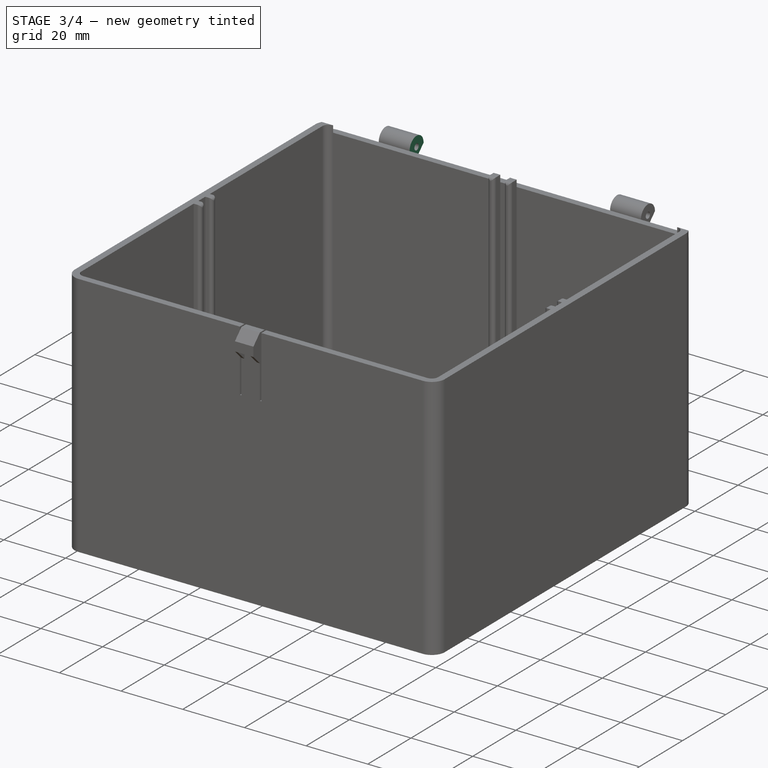
[diagram: stage 3 of 4 — iso view after this stage's code; geometry added in this stage tinted green]
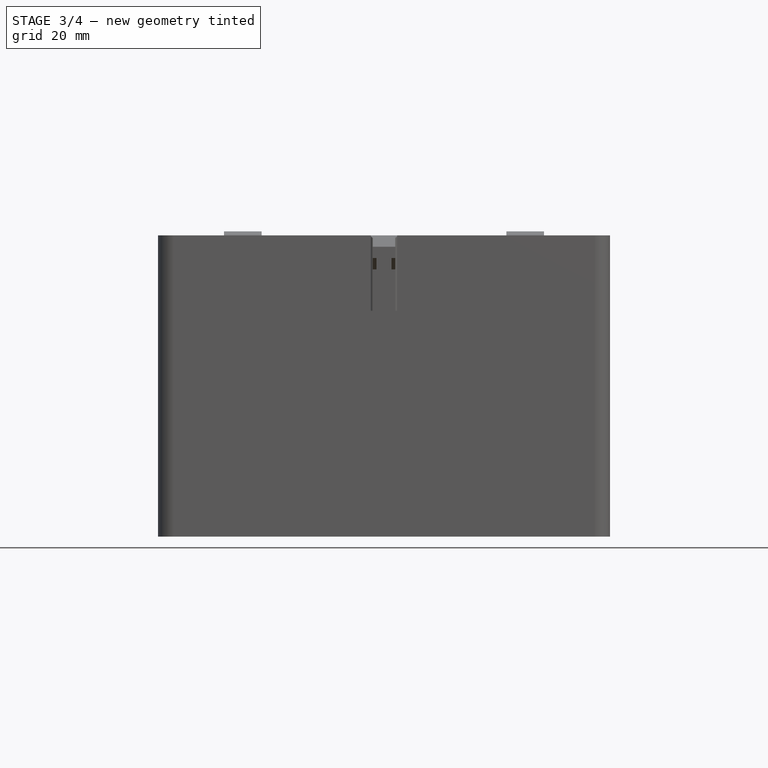
[diagram: stage 3 of 4 — front view after this stage's code; geometry added in this stage tinted green]
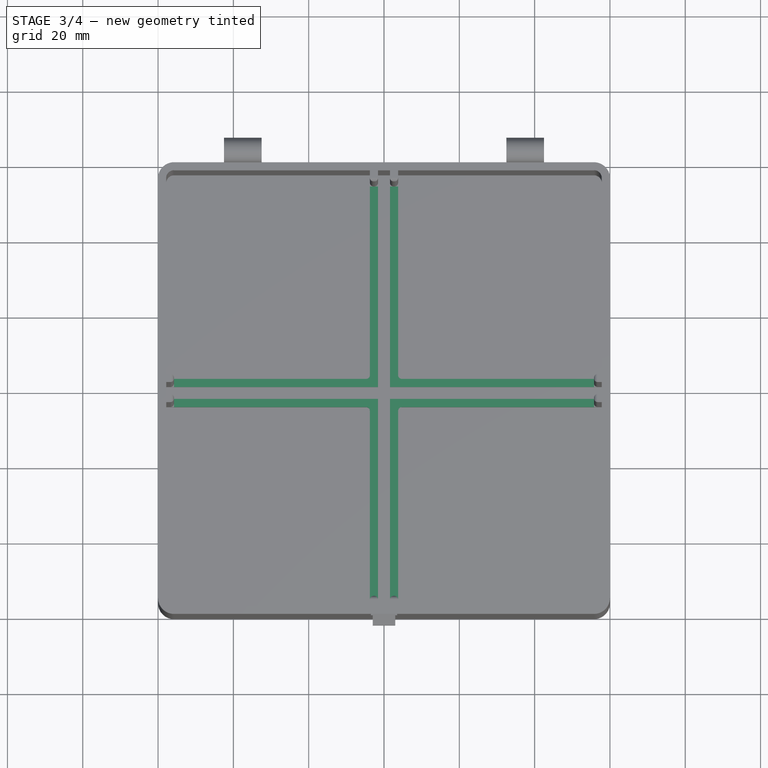
[diagram: stage 3 of 4 — top view after this stage's code; geometry added in this stage tinted green]
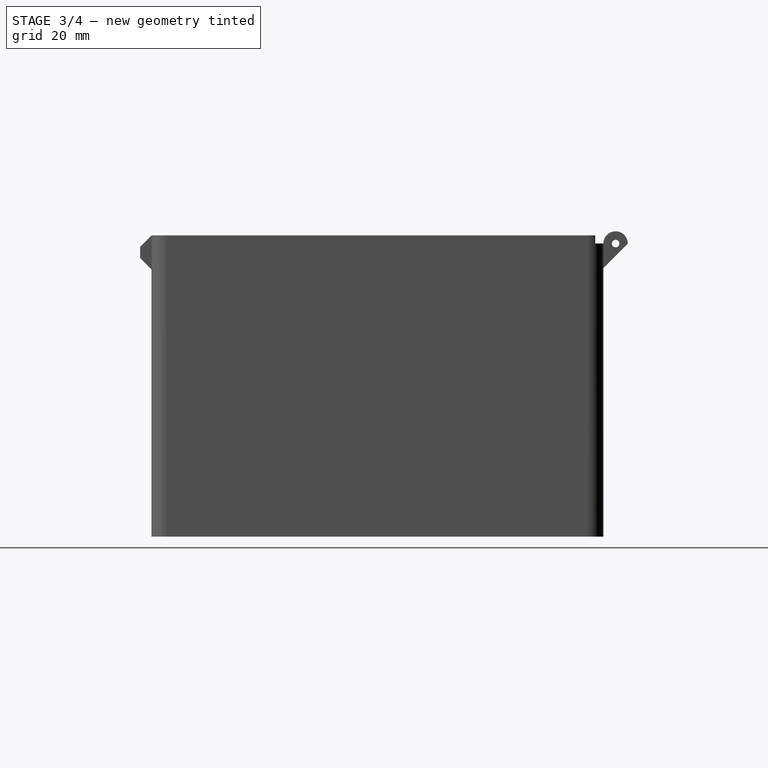
[diagram: stage 3 of 4 — right view after this stage's code; geometry added in this stage tinted green]
FEATURE [Sketcher::SketchObject] Sketch009
  ExternalGeometry = -> [Sketch001]
  FullyConstrained = true
  MapMode = 5
  Placement = pos=(0,0,0) rot=(0.57735,0.57735,0.57735;2.0944rad)
  Support = -> [YZ_Plane]
  sketch-geometry (3):
    g0: LineSegment StartX=60 StartY=77.84 StartZ=0 EndX=60 EndY=71.34 EndZ=0
    g1: LineSegment StartX=60 StartY=71.34 StartZ=0 EndX=66.5 EndY=77.84 EndZ=0
    g2: ArcOfCircle CenterX=63.25 CenterY=77.84 CenterZ=0 NormalX=0 NormalY=0 NormalZ=1 AngleXU=0 Radius=3.25 StartAngle=-8e-15 EndAngle=3.14159
  constraints (7):
    c: Coincident(g0,g-4)
    c: Coincident(g0,g-5)
    c: Coincident(g1,g0)
    c: Coincident(g1,g-7)
    c: Coincident(g2,g-4)
    c: Coincident(g2,g0)
    c: Coincident(g2,g1)
FEATURE [PartDesign::Pocket] Pocket003
  BaseFeature = -> Pocket002
  Length = 65
  Length2 = 100
  Midplane = true
  Profile = -> Sketch009
  Type = 0
  expr: Length = <<Param>>.Width - 2 * (<<Param>>.HingeOffset + <<Param>>.HingeLength)
FEATURE [Sketcher::SketchObject] Sketch010
  ExternalGeometry = -> [Sketch]
  FullyConstrained = true
  MapMode = 5
  Support = -> [XY_Plane]
  sketch-geometry (24):
    g0: LineSegment StartX=1.58 StartY=57.84 StartZ=0 EndX=3.74 EndY=57.84 EndZ=0
    g1: LineSegment StartX=3.74 StartY=57.84 StartZ=0 EndX=3.74 EndY=3.74 EndZ=0
    g2: LineSegment StartX=3.74 StartY=-57.84 StartZ=0 EndX=1.58 EndY=-57.84 EndZ=0
    g3: LineSegment StartX=1.58 StartY=-57.84 StartZ=0 EndX=1.58 EndY=-1.58 EndZ=0
    g4: LineSegment StartX=-1.58 StartY=-57.84 StartZ=0 EndX=-3.74 EndY=-57.84 EndZ=0
    g5: LineSegment StartX=-3.74 StartY=-57.84 StartZ=0 EndX=-3.74 EndY=-3.74 EndZ=0
    g6: LineSegment StartX=-3.74 StartY=57.84 StartZ=0 EndX=-1.58 EndY=57.84 EndZ=0
    g7: LineSegment StartX=-1.58 StartY=57.84 StartZ=0 EndX=-1.58 EndY=1.58 EndZ=0
    g8: LineSegment StartX=-57.84 StartY=3.74 StartZ=0 EndX=-3.74 EndY=3.74 EndZ=0
    g9: LineSegment StartX=57.84 StartY=3.74 StartZ=0 EndX=57.84 EndY=1.58 EndZ=0
    g10: LineSegment StartX=57.84 StartY=1.58 StartZ=0 EndX=1.58 EndY=1.58 EndZ=0
    g11: LineSegment StartX=-57.84 StartY=1.58 StartZ=0 EndX=-57.84 EndY=3.74 EndZ=0
    g12: LineSegment StartX=57.84 StartY=-1.58 StartZ=0 EndX=1.58 EndY=-1.58 EndZ=0
    g13: LineSegment StartX=-57.84 StartY=-1.58 StartZ=0 EndX=-57.84 EndY=-3.74 EndZ=0
    g14: LineSegment StartX=-57.84 StartY=-3.74 StartZ=0 EndX=-3.74 EndY=-3.74 EndZ=0
    g15: LineSegment StartX=57.84 StartY=-3.74 StartZ=0 EndX=57.84 EndY=-1.58 EndZ=0
    g16: LineSegment StartX=3.74 StartY=-3.74 StartZ=0 EndX=3.74 EndY=-57.84 EndZ=0
    g17: LineSegment StartX=1.58 StartY=1.58 StartZ=0 EndX=1.58 EndY=57.84 EndZ=0
    g18: LineSegment StartX=-1.58 StartY=-1.58 StartZ=0 EndX=-1.58 EndY=-57.84 EndZ=0
    g19: LineSegment StartX=-3.74 StartY=3.74 StartZ=0 EndX=-3.74 EndY=57.84 EndZ=0
    g20: LineSegment StartX=3.74 StartY=-3.74 StartZ=0 EndX=57.84 EndY=-3.74 EndZ=0
    g21: LineSegment StartX=-1.58 StartY=-1.58 StartZ=0 EndX=-57.84 EndY=-1.58 EndZ=0
    g22: LineSegment StartX=-1.58 StartY=1.58 StartZ=0 EndX=-57.84 EndY=1.58 EndZ=0
    g23: LineSegment StartX=3.74 StartY=3.74 StartZ=0 EndX=57.84 EndY=3.74 EndZ=0
  constraints (56):
    c: Coincident(g0,g1)
    c: Coincident(g16,g2)
    c: Coincident(g2,g3)
    c: Coincident(g17,g0)
    c: Horizontal(g0)
    c: Horizontal(g2)
    c: Vertical(g1)
    c: Vertical(g3)
    c: Coincident(g0,g-4)
    c: Coincident(g16,g-3)
    c: Coincident(g4,g5)
    c: Coincident(g19,g6)
    c: Coincident(g6,g7)
    c: Coincident(g18,g4)
    c: Horizontal(g4)
    c: Horizontal(g6)
    c: Vertical(g5)
    c: Vertical(g7)
    c: Coincident(g4,g-5)
    c: Coincident(g19,g-6)
    c: Coincident(g23,g9)
    c: Coincident(g9,g10)
    c: Coincident(g22,g11)
    c: Coincident(g11,g8)
    c: Horizontal(g8)
    c: Horizontal(g10)
    c: Vertical(g9)
    c: Vertical(g11)
    c: Coincident(g8,g-7)
    c: Coincident(g9,g-8)
    c: Coincident(g21,g13)
    c: Coincident(g13,g14)
    c: Coincident(g20,g15)
    c: Coincident(g15,g12)
    c: Horizontal(g12)
    c: Horizontal(g14)
    c: Vertical(g13)
    c: Vertical(g15)
    c: Coincident(g12,g-9)
    c: Coincident(g13,g-10)
    c: Tangent(g1,g16)
    c: Tangent(g3,g17)
    c: Tangent(g7,g18)
    c: Tangent(g5,g19)
    c: Tangent(g14,g20)
    c: Coincident(g12,g3)
    c: Coincident(g21,g18)
    c: Tangent(g12,g21)
    c: Coincident(g10,g17)
    c: Coincident(g22,g7)
    c: Tangent(g10,g22)
    c: Tangent(g8,g23)
    c: Coincident(g14,g5)
    c: Coincident(g16,g20)
    c: Coincident(g23,g1)
    c: Coincident(g19,g8)
FEATURE [PartDesign::Pad] Pad004
  BaseFeature = -> Pocket003
  Direction = (0,0,1)
  Length = 4.32
  Length2 = 100
  Profile = -> Sketch010
  Type = 0
  expr: Length = 2 * <<Param>>.WallWidth
FEATURE [PartDesign::Fillet] Fillet
  Base = -> Pad004 [Edge343,Edge363,Edge373,Edge287,Edge278,Edge69,Edge73,Edge190,Edge186,Edge222,Edge200,Edge321,Edge322,Edge340,Edge268,Edge143,Edge141,Edge133,Edge131,Edge307,Edge273,Edge276,Edge281,Edge286,Edge316,Edge314,Edge305,Edge359]
  BaseFeature = -> Pad004
  Radius = 1
  SupportTransform = false
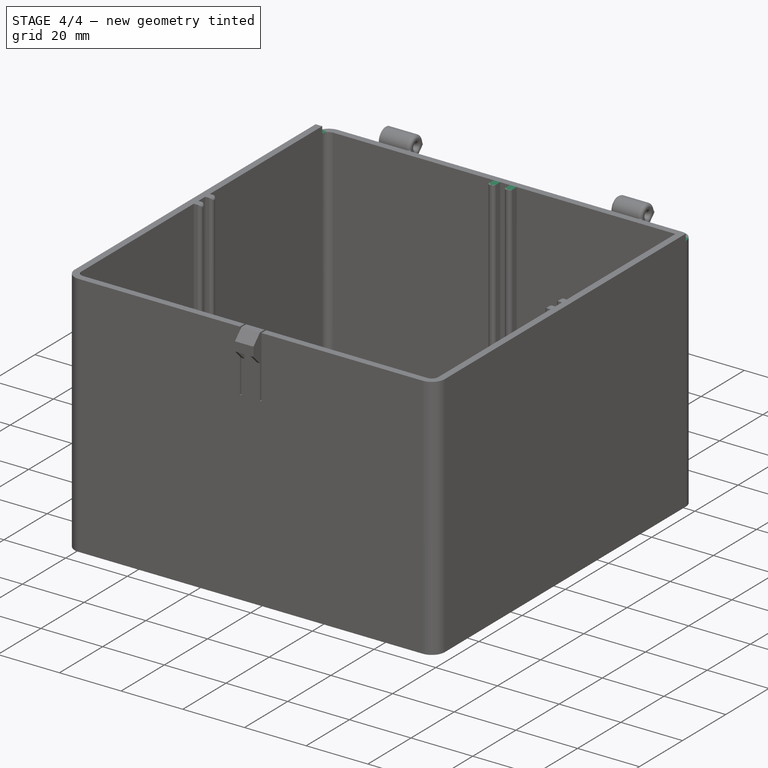
[diagram: stage 4 of 4 — iso view after this stage's code; geometry added in this stage tinted green]
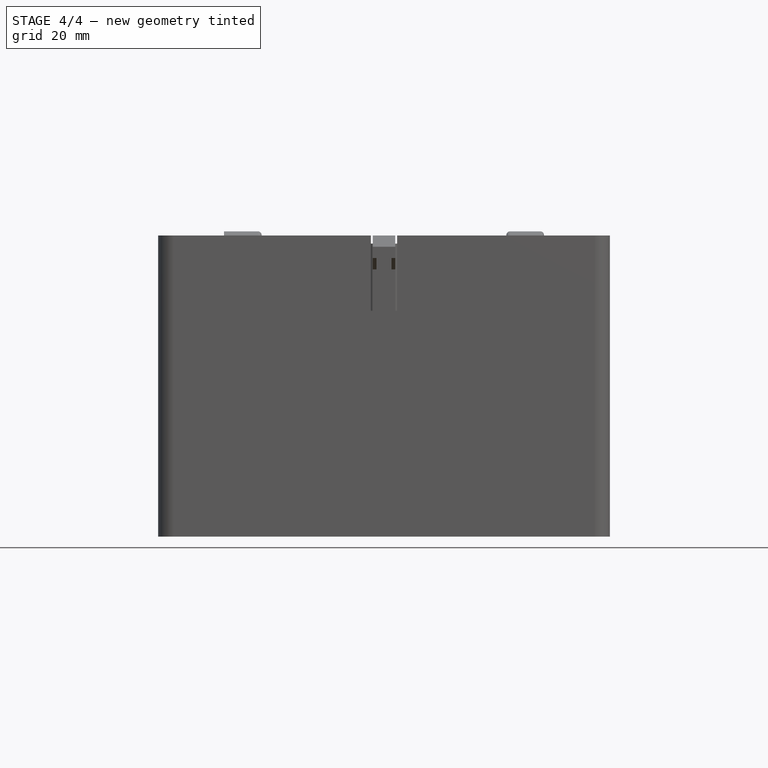
[diagram: stage 4 of 4 — front view after this stage's code; geometry added in this stage tinted green]
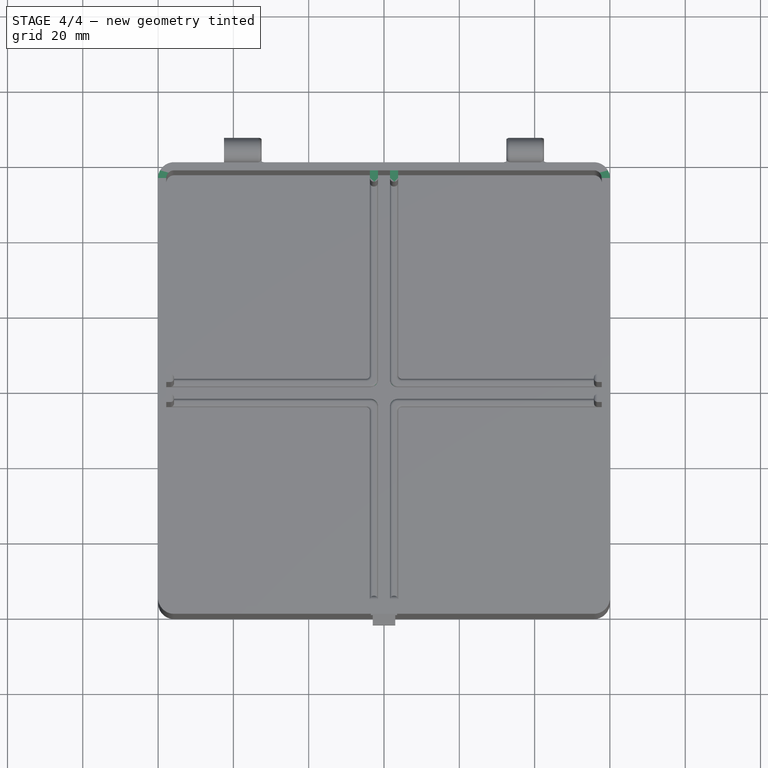
[diagram: stage 4 of 4 — top view after this stage's code; geometry added in this stage tinted green]
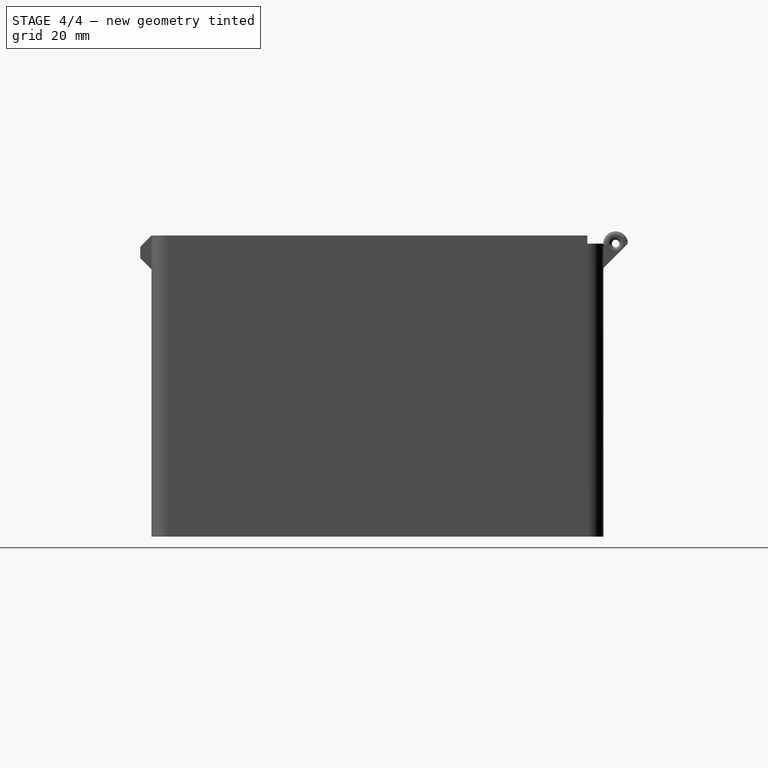
[diagram: stage 4 of 4 — right view after this stage's code; geometry added in this stage tinted green]
FEATURE [PartDesign::Fillet] Fillet002
  Base = -> Fillet [Edge260,Edge272,Edge250,Edge252]
  BaseFeature = -> Fillet
  Radius = 2
  SupportTransform = false
FEATURE [PartDesign::Fillet] Fillet003
  Base = -> Fillet002 [Edge186,Edge103,Edge1,Edge13,Edge16,Edge4,Edge137,Edge227,Edge230,Edge143,Edge125,Edge214,Edge217,Edge121,Edge109,Edge183]
  BaseFeature = -> Fillet002
  Radius = 0.7
  SupportTransform = false
FEATURE [Sketcher::SketchObject] Sketch011
  ExternalGeometry = -> [Sketch]
  FullyConstrained = true
  MapMode = 5
  Placement = pos=(0,0,80) rot=(0,0,1;0rad)
  Support = -> [Fillet003]
  sketch-geometry (8):
    g0: LineSegment StartX=-60 StartY=60 StartZ=0 EndX=60 EndY=60 EndZ=0
    g1: LineSegment StartX=60 StartY=60 StartZ=0 EndX=60 EndY=55.7574 EndZ=0
    g2: LineSegment StartX=60 StartY=55.7574 StartZ=0 EndX=3.74 EndY=55.7574 EndZ=0
    g3: LineSegment StartX=-60 StartY=55.7574 StartZ=0 EndX=-60 EndY=60 EndZ=0
    g4: LineSegment StartX=3.74 StartY=54.84 StartZ=0 EndX=-3.74 EndY=54.84 EndZ=0
    g5: LineSegment StartX=3.74 StartY=54.84 StartZ=0 EndX=3.74 EndY=55.7574 EndZ=0
    g6: LineSegment StartX=-3.74 StartY=54.84 StartZ=0 EndX=-3.74 EndY=55.7574 EndZ=0
    g7: LineSegment StartX=-3.74 StartY=55.7574 StartZ=0 EndX=-60 EndY=55.7574 EndZ=0
  constraints (22):
    c: Coincident(g0,g1)
    c: Coincident(g1,g2)
    c: Coincident(g7,g3)
    c: Coincident(g3,g0)
    c: Horizontal(g0)
    c: Horizontal(g2)
    c: Vertical(g1)
    c: Vertical(g3)
    c: Coincident(g0,g-4)
    c: PointOnObject(g1,g-6)
    c: PointOnObject(g-5,g2)
    c: Coincident(g4,g-11)
    c: Coincident(g4,g-11)
    c: Coincident(g5,g4)
    c: Coincident(g6,g4)
    c: PointOnObject(g6,g2)
    c: Vertical(g6)
    c: Vertical(g5)
    c: Coincident(g2,g5)
    c: PointOnObject(g7,g6)
    c: PointOnObject(g-5,g7)
    c: Horizontal(g7)
FEATURE [PartDesign::Pocket] Pocket004
  BaseFeature = -> Fillet003
  Length = 2.16
  Length2 = 100
  Profile = -> Sketch011
  Type = 0
  expr: Length = <<Param>>.WallWidth
FEATURE [PartDesign::Fillet] Fillet004
  Base = -> Pocket004 [Edge369,Edge375,Edge373,Edge227,Edge232,Edge374,Edge222,Edge220,Edge230,Edge231,Edge226]
  BaseFeature = -> Pocket004
  Radius = 1
  SupportTransform = false
FEATURE [PartDesign::Body] Body  label="BoxBase"
  Group = -> [Sketch,Sketch001,Sketch002,Pad,Sketch003,Pad001,Sketch004,Pocket,Sketch005,Pad002,Sketch006,Pocket001,Sketch007,Pad003,Sketch008,Pocket002,Sketch009,Pocket003,Sketch010,Pad004,Fillet,Fillet002,Fillet003,Sketch011,Pocket004,Fillet004]
  Origin = -> Origin
  Tip = -> Fillet004
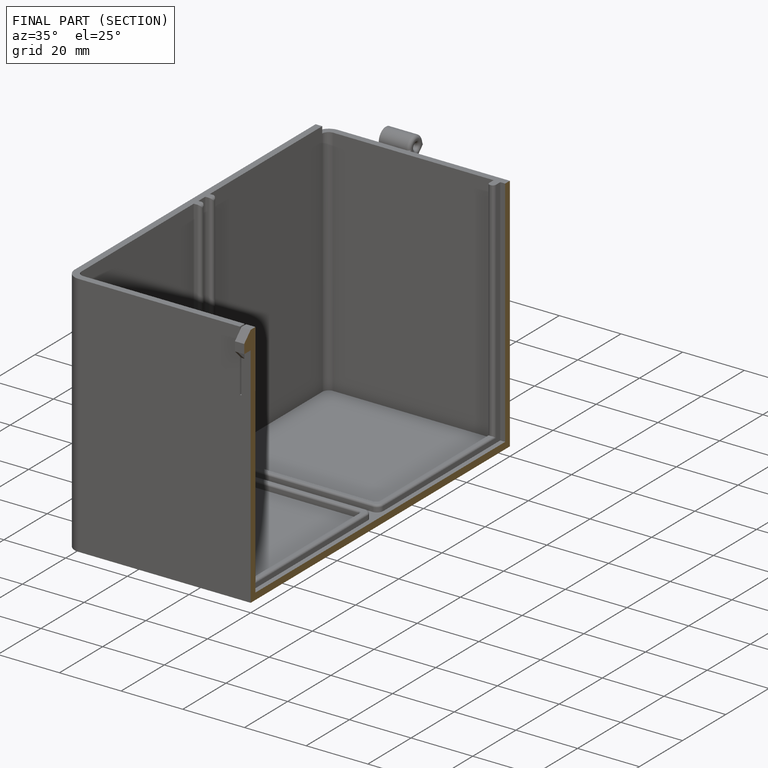
[diagram: finished part — half-section view (interior)]
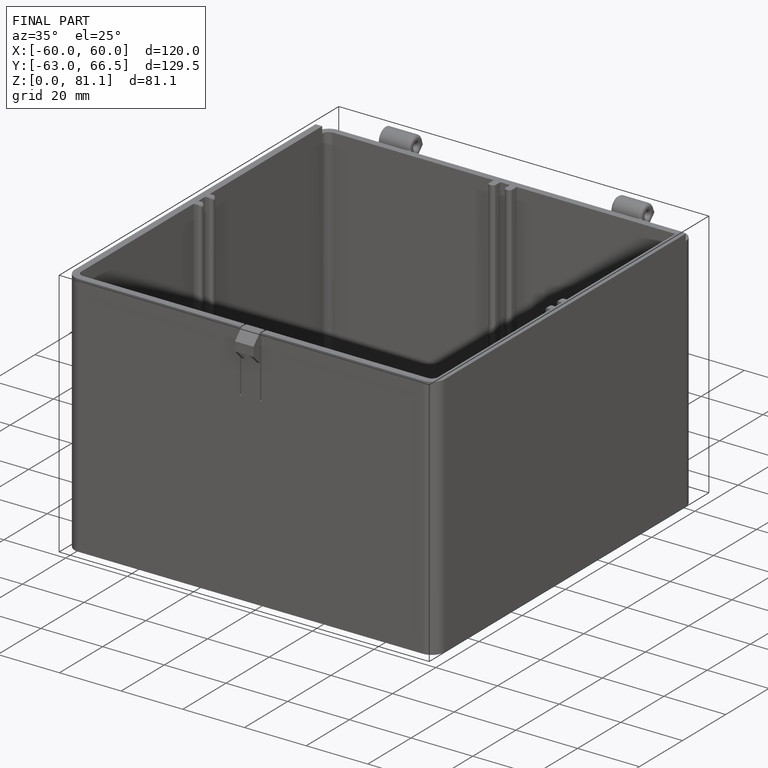
[diagram: finished part — iso view with bounding-box wireframe]
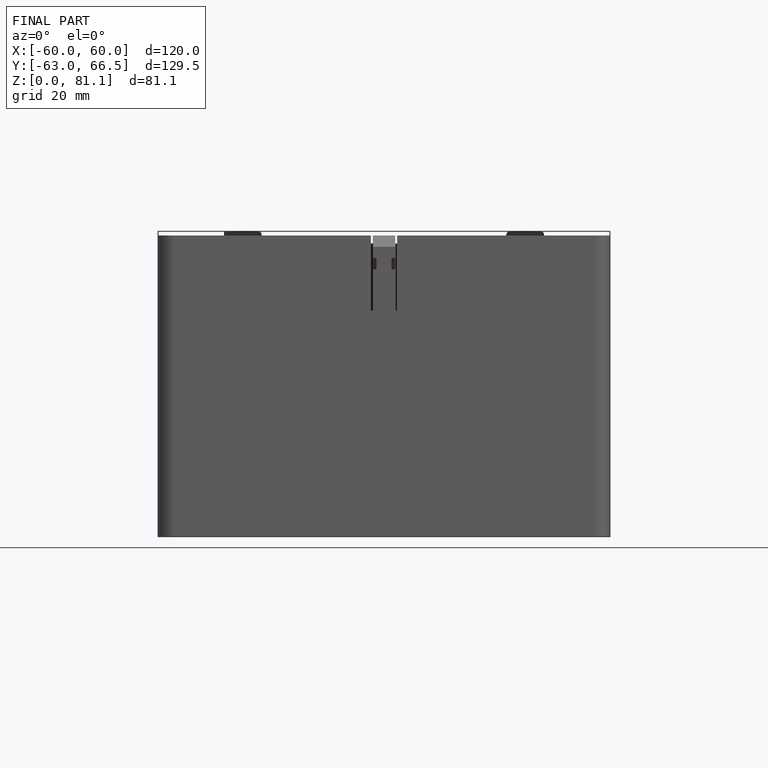
[diagram: finished part — front view with bounding-box wireframe]
